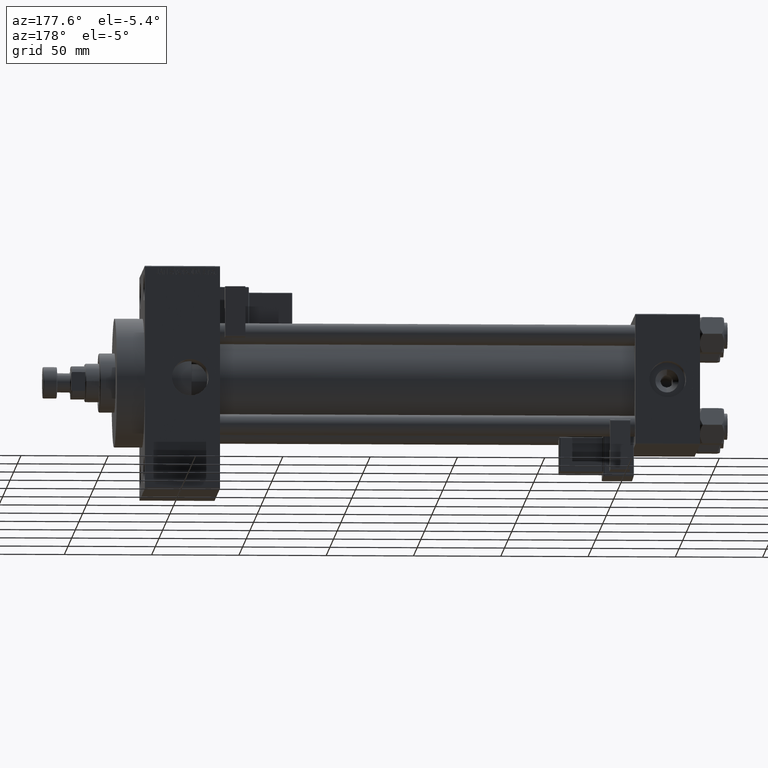
[diagram: clean part render]
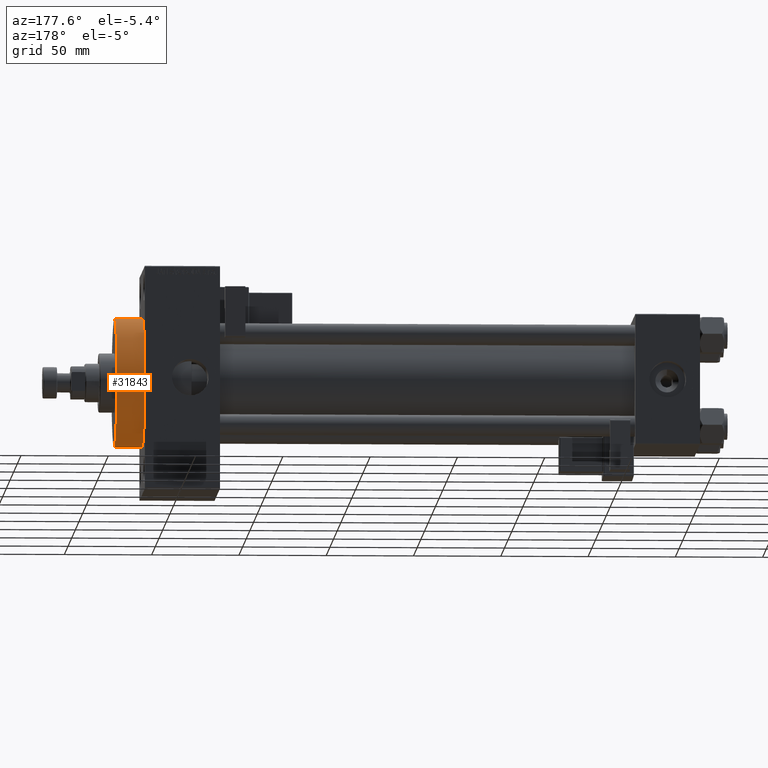
[diagram: same view with one face highlighted and labeled with its STEP entity id]
A machine part, auxiliary view. The second image highlights one B-rep face of the part: STEP entity #31843.
In plain terms, the highlighted cylindrical surface (partial cylindrical patch) has radius 37 mm, axis along (-1, -0, -0).
Its self-contained STEP definition (entity closure, byte-faithful):
#1253 = CIRCLE ( 'NONE', #36770, 37.00000000000000000 ) ;
#5446 = AXIS2_PLACEMENT_3D ( 'NONE', #7930, #42742, #34681 ) ;
#7930 = CARTESIAN_POINT ( 'NONE',  ( 317.9999999999999432, 0.000000000000000000, 0.000000000000000000 ) ) ;
#11459 = LINE ( 'NONE', #27108, #36072 ) ;
#13623 = LINE ( 'NONE', #21461, #13851 ) ;
#13721 = EDGE_CURVE ( 'NONE', #28210, #15090, #1253, .T. ) ;
#13851 = VECTOR ( 'NONE', #44645, 1000.000000000000000 ) ;
#14478 = CARTESIAN_POINT ( 'NONE',  ( 317.9999999999999432, 4.531193156845206793E-15, -37.00000000000000000 ) ) ;
#15090 = VERTEX_POINT ( 'NONE', #22795 ) ;
#18417 = CARTESIAN_POINT ( 'NONE',  ( 333.9999999999999432, 4.531193156845206793E-15, -37.00000000000000000 ) ) ;
#18595 = EDGE_LOOP ( 'NONE', ( #21245, #22457, #24459, #22680 ) ) ;
#20223 = CARTESIAN_POINT ( 'NONE',  ( 333.9999999999999432, 0.000000000000000000, 0.000000000000000000 ) ) ;
#20484 = DIRECTION ( 'NONE',  ( 1.000000000000000000, 0.000000000000000000, 0.000000000000000000 ) ) ;
#21245 = ORIENTED_EDGE ( 'NONE', *, *, #13721, .F. ) ;
#21421 = AXIS2_PLACEMENT_3D ( 'NONE', #38381, #46175, #22270 ) ;
#21461 = CARTESIAN_POINT ( 'NONE',  ( 333.9999999999999432, 4.531193156845206793E-15, -37.00000000000000000 ) ) ;
#22270 = DIRECTION ( 'NONE',  ( 0.000000000000000000, 0.000000000000000000, 1.000000000000000000 ) ) ;
#22457 = ORIENTED_EDGE ( 'NONE', *, *, #40332, .T. ) ;
#22680 = ORIENTED_EDGE ( 'NONE', *, *, #36581, .F. ) ;
#22795 = CARTESIAN_POINT ( 'NONE',  ( 333.9999999999999432, 0.000000000000000000, 37.00000000000000000 ) ) ;
#24310 = VERTEX_POINT ( 'NONE', #14478 ) ;
#24459 = ORIENTED_EDGE ( 'NONE', *, *, #36585, .T. ) ;
#27108 = CARTESIAN_POINT ( 'NONE',  ( 333.9999999999999432, 0.000000000000000000, 37.00000000000000000 ) ) ;
#27355 = DIRECTION ( 'NONE',  ( -1.000000000000000000, -0.000000000000000000, -0.000000000000000000 ) ) ;
#28210 = VERTEX_POINT ( 'NONE', #18417 ) ;
#30806 = CYLINDRICAL_SURFACE ( 'NONE', #21421, 37.00000000000000000 ) ;
#31843 = ADVANCED_FACE ( 'NONE', ( #42407 ), #30806, .T. ) ;
#34477 = CIRCLE ( 'NONE', #5446, 37.00000000000000000 ) ;
#34681 = DIRECTION ( 'NONE',  ( 0.000000000000000000, 0.000000000000000000, -1.000000000000000000 ) ) ;
#36072 = VECTOR ( 'NONE', #27355, 1000.000000000000000 ) ;
#36581 = EDGE_CURVE ( 'NONE', #15090, #41757, #11459, .T. ) ;
#36585 = EDGE_CURVE ( 'NONE', #24310, #41757, #34477, .T. ) ;
#36770 = AXIS2_PLACEMENT_3D ( 'NONE', #20223, #20484, #47950 ) ;
#38381 = CARTESIAN_POINT ( 'NONE',  ( 333.9999999999999432, 0.000000000000000000, 0.000000000000000000 ) ) ;
#40332 = EDGE_CURVE ( 'NONE', #28210, #24310, #13623, .T. ) ;
#41757 = VERTEX_POINT ( 'NONE', #44296 ) ;
#42407 = FACE_OUTER_BOUND ( 'NONE', #18595, .T. ) ;
#42742 = DIRECTION ( 'NONE',  ( 1.000000000000000000, 0.000000000000000000, 0.000000000000000000 ) ) ;
#44296 = CARTESIAN_POINT ( 'NONE',  ( 317.9999999999999432, 0.000000000000000000, 37.00000000000000000 ) ) ;
#44645 = DIRECTION ( 'NONE',  ( -1.000000000000000000, -0.000000000000000000, -0.000000000000000000 ) ) ;
#46175 = DIRECTION ( 'NONE',  ( -1.000000000000000000, -0.000000000000000000, -0.000000000000000000 ) ) ;
#47950 = DIRECTION ( 'NONE',  ( 0.000000000000000000, 0.000000000000000000, -1.000000000000000000 ) ) ;